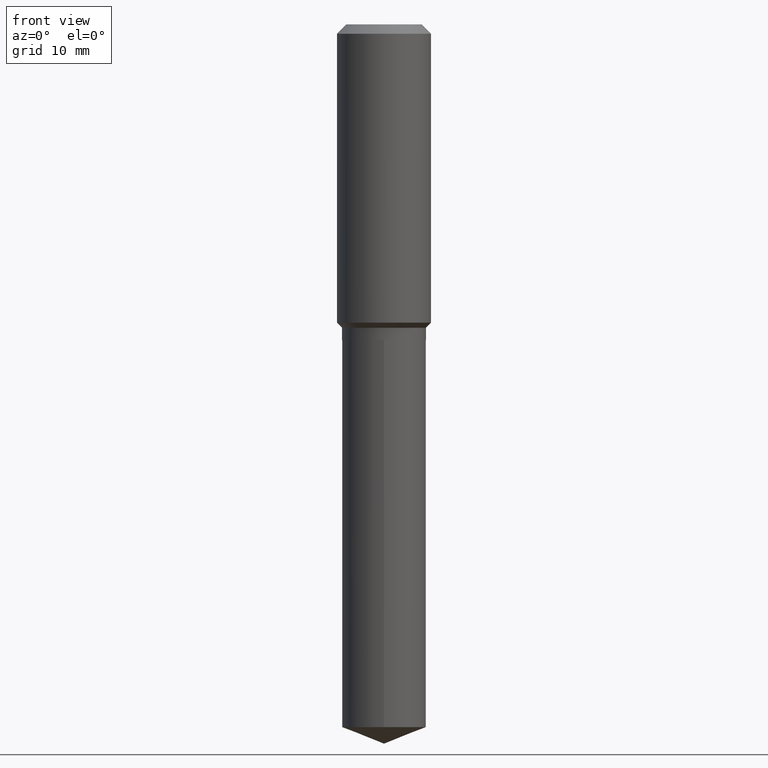
[diagram: clean part render]
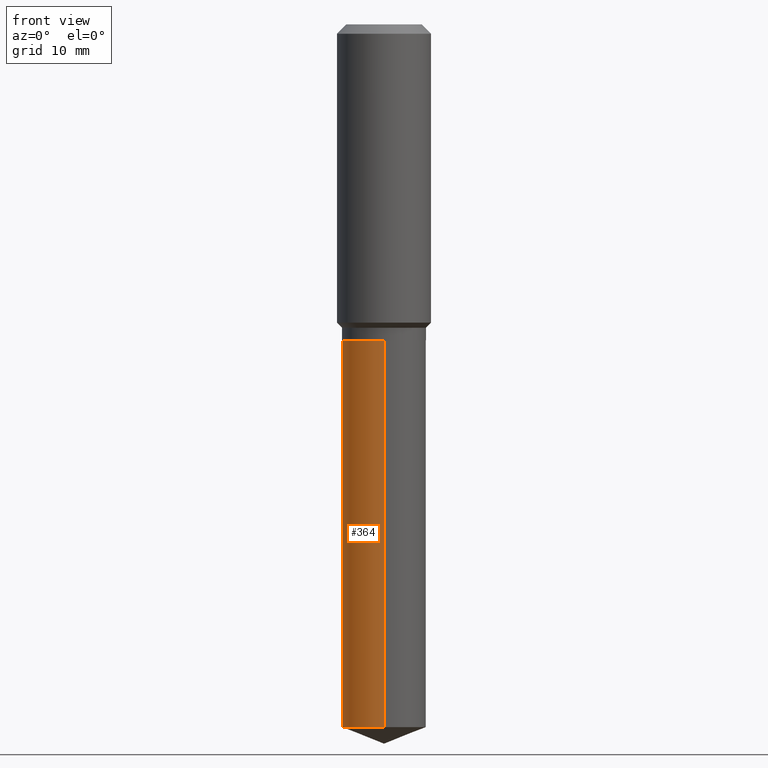
[diagram: same view with one face highlighted and labeled with its STEP entity id]
A machine part, front view. The second image highlights one B-rep face of the part: STEP entity #364.
In plain terms, the highlighted cylindrical surface (partial cylindrical patch) has radius 6.2497 mm, axis along (-0, 0, 1).
Its self-contained STEP definition (entity closure, byte-faithful):
#4 = ORIENTED_EDGE ( 'NONE', *, *, #477, .F. ) ;
#8 = AXIS2_PLACEMENT_3D ( 'NONE', #70, #365, #288 ) ;
#39 = CIRCLE ( 'NONE', #311, 0.2460499999999999909 ) ;
#60 = LINE ( 'NONE', #177, #225 ) ;
#69 = VERTEX_POINT ( 'NONE', #387 ) ;
#70 = CARTESIAN_POINT ( 'NONE',  ( 4.525095478964977954E-29, -6.460637069395358365E-15, -1.850400000000000489 ) ) ;
#92 = CIRCLE ( 'NONE', #396, 0.2460499999999999909 ) ;
#94 = EDGE_CURVE ( 'NONE', #162, #69, #39, .T. ) ;
#95 = VERTEX_POINT ( 'NONE', #421 ) ;
#99 = CARTESIAN_POINT ( 'NONE',  ( 4.525095478964978515E-29, -6.460637069395359943E-15, -1.850400000000000933 ) ) ;
#107 = CARTESIAN_POINT ( 'NONE',  ( 1.748290401337827023E-15, 0.2460499999999856136, -4.115678327474944886 ) ) ;
#113 = CARTESIAN_POINT ( 'NONE',  ( 1.006526279584693269E-28, -1.436909829245988232E-14, -4.115678327474943998 ) ) ;
#162 = VERTEX_POINT ( 'NONE', #107 ) ;
#177 = CARTESIAN_POINT ( 'NONE',  ( -1.718157966844660576E-15, -0.2460500000000064580, -1.850399999999999823 ) ) ;
#217 = LINE ( 'NONE', #372, #346 ) ;
#218 = ORIENTED_EDGE ( 'NONE', *, *, #343, .T. ) ;
#225 = VECTOR ( 'NONE', #241, 39.37007874015748143 ) ;
#234 = VERTEX_POINT ( 'NONE', #313 ) ;
#241 = DIRECTION ( 'NONE',  ( -2.445689454442209715E-29, 3.491165357980497875E-15, 1.000000000000000000 ) ) ;
#244 = ORIENTED_EDGE ( 'NONE', *, *, #94, .T. ) ;
#248 = DIRECTION ( 'NONE',  ( -2.445689454442209715E-29, 3.491165357980497875E-15, 1.000000000000000000 ) ) ;
#254 = DIRECTION ( 'NONE',  ( -6.982962677686265922E-15, -1.000000000000000000, 4.441126589984577246E-15 ) ) ;
#261 = DIRECTION ( 'NONE',  ( -2.445689454442209715E-29, 3.491165357980497875E-15, 1.000000000000000000 ) ) ;
#288 = DIRECTION ( 'NONE',  ( -6.982962677686265922E-15, -1.000000000000000000, 3.330844942488433132E-15 ) ) ;
#311 = AXIS2_PLACEMENT_3D ( 'NONE', #113, #261, #254 ) ;
#313 = CARTESIAN_POINT ( 'NONE',  ( 1.748290401337827417E-15, 0.2460499999999935794, -1.850400000000001599 ) ) ;
#343 = EDGE_CURVE ( 'NONE', #69, #95, #60, .T. ) ;
#346 = VECTOR ( 'NONE', #248, 39.37007874015748143 ) ;
#363 = ORIENTED_EDGE ( 'NONE', *, *, #437, .F. ) ;
#364 = ADVANCED_FACE ( 'NONE', ( #367 ), #478, .T. ) ;
#365 = DIRECTION ( 'NONE',  ( -2.445689454442209715E-29, 3.491165357980497875E-15, 1.000000000000000000 ) ) ;
#367 = FACE_OUTER_BOUND ( 'NONE', #490, .T. ) ;
#372 = CARTESIAN_POINT ( 'NONE',  ( 1.748290401337771408E-15, 0.2460499999999935516, -1.850400000000001377 ) ) ;
#387 = CARTESIAN_POINT ( 'NONE',  ( -1.718157966844604764E-15, -0.2460500000000143406, -4.115678327474942222 ) ) ;
#396 = AXIS2_PLACEMENT_3D ( 'NONE', #99, #407, #433 ) ;
#407 = DIRECTION ( 'NONE',  ( -2.445689454442209715E-29, 3.491165357980497875E-15, 1.000000000000000000 ) ) ;
#421 = CARTESIAN_POINT ( 'NONE',  ( -1.718157966844660576E-15, -0.2460500000000064580, -1.850400000000000045 ) ) ;
#433 = DIRECTION ( 'NONE',  ( -6.982962677686265922E-15, -1.000000000000000000, 3.330844942488433132E-15 ) ) ;
#437 = EDGE_CURVE ( 'NONE', #162, #234, #217, .T. ) ;
#477 = EDGE_CURVE ( 'NONE', #234, #95, #92, .T. ) ;
#478 = CYLINDRICAL_SURFACE ( 'NONE', #8, 0.2460499999999999909 ) ;
#490 = EDGE_LOOP ( 'NONE', ( #363, #244, #218, #4 ) ) ;